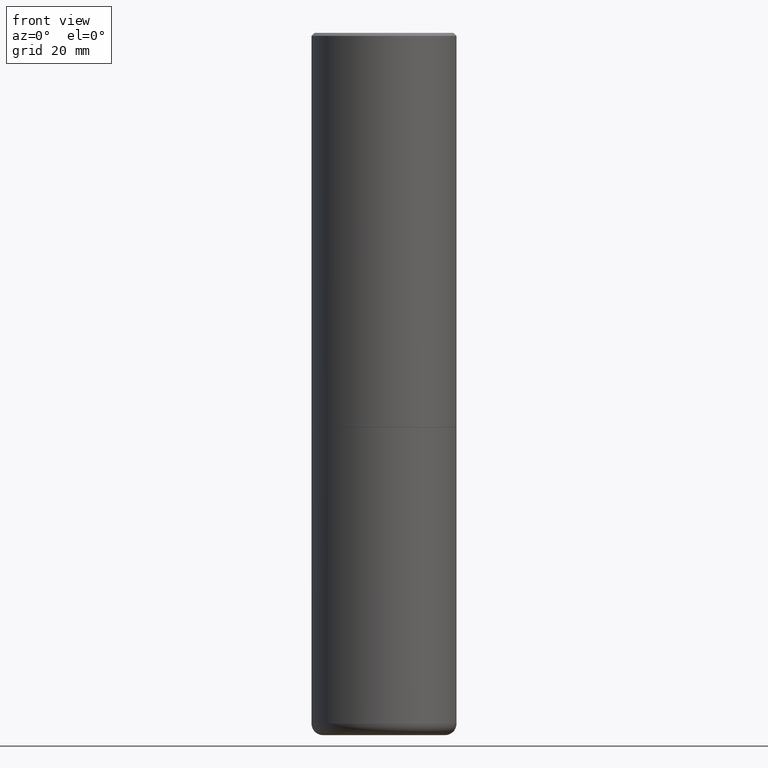
[diagram: clean part render]
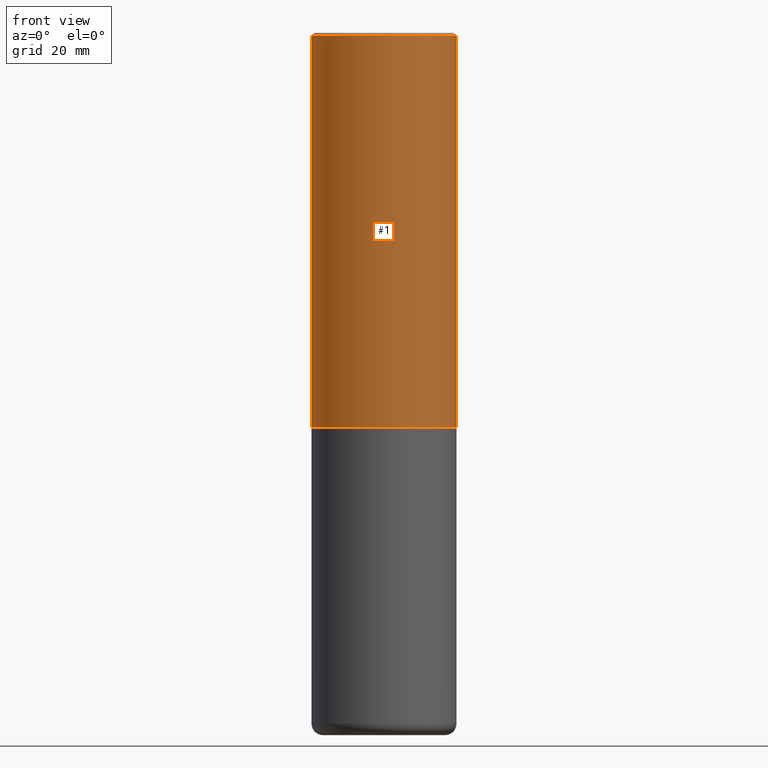
[diagram: same view with one face highlighted and labeled with its STEP entity id]
A machine part, front view. The second image highlights one B-rep face of the part: STEP entity #1.
In plain terms, the highlighted cylindrical surface (partial cylindrical patch) has radius 12.5006 mm, axis along (-0, 0, 1).
Its self-contained STEP definition (entity closure, byte-faithful):
#1 = ADVANCED_FACE ( 'NONE', ( #185 ), #117, .T. ) ;
#11 = LINE ( 'NONE', #13, #141 ) ;
#13 = CARTESIAN_POINT ( 'NONE',  ( 0.4921500000000000874, -3.436665081823296565E-15, 2.399810400207970163E-29 ) ) ;
#15 = VERTEX_POINT ( 'NONE', #45 ) ;
#20 = EDGE_LOOP ( 'NONE', ( #28, #303, #411, #67 ) ) ;
#24 = DIRECTION ( 'NONE',  ( -2.445468806185136597E-29, 3.491481338843145583E-15, 1.000000000000000000 ) ) ;
#28 = ORIENTED_EDGE ( 'NONE', *, *, #250, .F. ) ;
#36 = DIRECTION ( 'NONE',  ( -2.445468806185136877E-29, 3.491481338843145188E-15, 1.000000000000000000 ) ) ;
#40 = LINE ( 'NONE', #43, #409 ) ;
#43 = CARTESIAN_POINT ( 'NONE',  ( -0.4921500000000000874, 3.496936074043333686E-15, -2.420853904668952350E-29 ) ) ;
#45 = CARTESIAN_POINT ( 'NONE',  ( 0.4921499999999999764, -3.446223716380122349E-15, -0.02000000000000010797 ) ) ;
#52 = CIRCLE ( 'NONE', #223, 0.4921499999999999764 ) ;
#67 = ORIENTED_EDGE ( 'NONE', *, *, #385, .F. ) ;
#79 = DIRECTION ( 'NONE',  ( 1.000000000000000000, -6.982962677686265922E-15, 0.000000000000000000 ) ) ;
#105 = DIRECTION ( 'NONE',  ( -2.445468806185136597E-29, 3.491481338843145583E-15, 1.000000000000000000 ) ) ;
#108 = CIRCLE ( 'NONE', #252, 0.4921500000000003094 ) ;
#110 = DIRECTION ( 'NONE',  ( 1.000000000000000000, -6.982962677686265922E-15, 0.000000000000000000 ) ) ;
#111 = DIRECTION ( 'NONE',  ( -2.445468806185136597E-29, 3.491481338843145583E-15, 1.000000000000000000 ) ) ;
#117 = CYLINDRICAL_SURFACE ( 'NONE', #355, 0.4921500000000000874 ) ;
#128 = EDGE_CURVE ( 'NONE', #207, #15, #11, .T. ) ;
#130 = DIRECTION ( 'NONE',  ( -2.445468806185136877E-29, 3.491481338843145188E-15, 1.000000000000000000 ) ) ;
#141 = VECTOR ( 'NONE', #130, 39.37007874015748143 ) ;
#176 = VERTEX_POINT ( 'NONE', #347 ) ;
#177 = CARTESIAN_POINT ( 'NONE',  ( -0.4921499999999999764, 3.366835455046432478E-15, -0.02000000000000010797 ) ) ;
#185 = FACE_OUTER_BOUND ( 'NONE', #20, .T. ) ;
#207 = VERTEX_POINT ( 'NONE', #257 ) ;
#219 = CARTESIAN_POINT ( 'NONE',  ( 0.000000000000000000, 0.000000000000000000, 0.000000000000000000 ) ) ;
#223 = AXIS2_PLACEMENT_3D ( 'NONE', #314, #24, #79 ) ;
#250 = EDGE_CURVE ( 'NONE', #176, #370, #40, .T. ) ;
#252 = AXIS2_PLACEMENT_3D ( 'NONE', #275, #105, #110 ) ;
#257 = CARTESIAN_POINT ( 'NONE',  ( 0.4921500000000003094, -1.278056744083532224E-14, -2.676199999999999690 ) ) ;
#275 = CARTESIAN_POINT ( 'NONE',  ( 6.544563619112662223E-29, -9.343902359012024888E-15, -2.676199999999999690 ) ) ;
#303 = ORIENTED_EDGE ( 'NONE', *, *, #366, .T. ) ;
#314 = CARTESIAN_POINT ( 'NONE',  ( 4.890937612370299433E-31, -6.982962677686328587E-17, -0.02000000000000010797 ) ) ;
#347 = CARTESIAN_POINT ( 'NONE',  ( -0.4921500000000003094, -1.209929918851106266E-15, -2.676199999999999690 ) ) ;
#348 = DIRECTION ( 'NONE',  ( 1.000000000000000000, -6.982962677686265922E-15, 4.876176775795935793E-29 ) ) ;
#355 = AXIS2_PLACEMENT_3D ( 'NONE', #219, #111, #348 ) ;
#366 = EDGE_CURVE ( 'NONE', #176, #207, #108, .T. ) ;
#370 = VERTEX_POINT ( 'NONE', #177 ) ;
#385 = EDGE_CURVE ( 'NONE', #370, #15, #52, .T. ) ;
#409 = VECTOR ( 'NONE', #36, 39.37007874015748143 ) ;
#411 = ORIENTED_EDGE ( 'NONE', *, *, #128, .T. ) ;